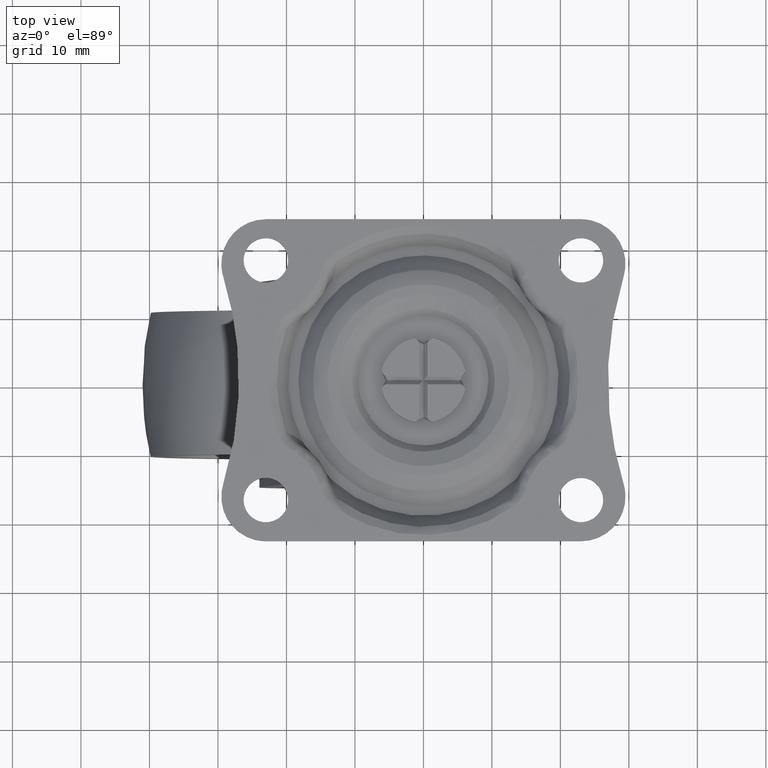
[diagram: clean part render]
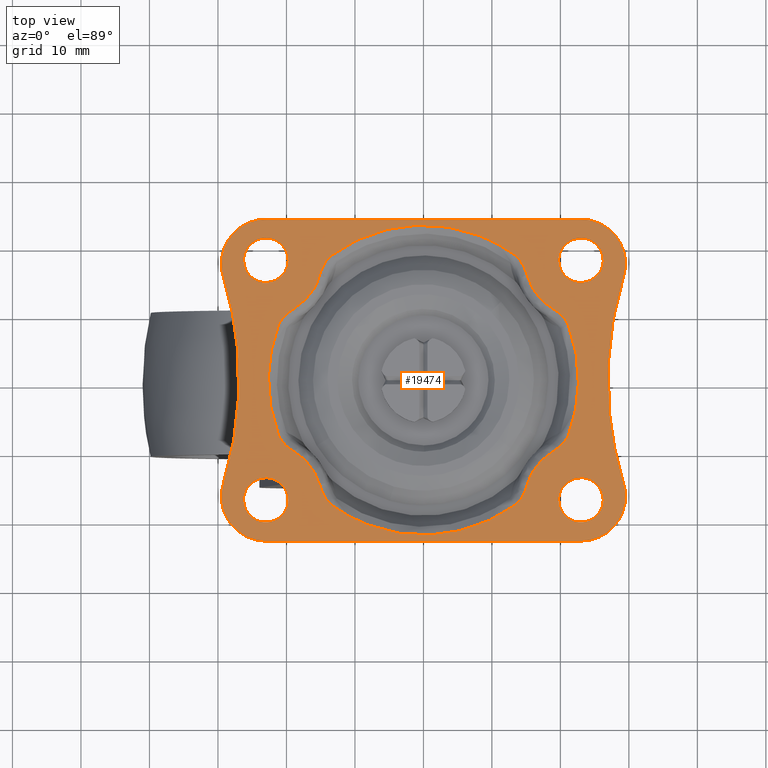
[diagram: same view with one face highlighted and labeled with its STEP entity id]
A machine part, top view. The second image highlights one B-rep face of the part: STEP entity #19474.
In plain terms, the highlighted face is a freeform B-spline surface patch.
Its self-contained STEP definition (entity closure, byte-faithful):
#9133=CARTESIAN_POINT('',(-23.383613262753968,14.272719039332291,-2.484500E-017));
#9134=VERTEX_POINT('',#9133);
#9140=CARTESIAN_POINT('',(-19.750001999999999,17.500000000000000,0.0));
#9141=VERTEX_POINT('',#9140);
#9142=CARTESIAN_POINT('',(-23.383613262753968,14.272719039332289,-2.484500E-017));
#9143=CARTESIAN_POINT('',(-23.192480388989473,14.249999999999996,0.0));
#9144=CARTESIAN_POINT('',(-23.000001999999999,14.250000000000000,0.0));
#9145=CARTESIAN_POINT('',(-19.750001999999991,14.249999999999998,0.0));
#9146=CARTESIAN_POINT('',(-19.750001999999999,17.500000000000000,0.0));
#9154=(BOUNDED_CURVE()B_SPLINE_CURVE(2,(#9142,#9143,#9144,#9145,#9146),.UNSPECIFIED.,.F.,.U.)B_SPLINE_CURVE_WITH_KNOTS((3,2,3),(0.229562473503128,0.250000000000000,0.500000000000000),.UNSPECIFIED.)CURVE()GEOMETRIC_REPRESENTATION_ITEM()RATIONAL_B_SPLINE_CURVE((0.956026754163354,0.976055948318984,1.0,0.707106781186547,1.0))REPRESENTATION_ITEM(''));
#9155=EDGE_CURVE('',#9134,#9141,#9154,.T.);
#9157=CARTESIAN_POINT('',(-22.801594246309421,20.743938094858692,-2.081668E-017));
#9158=VERTEX_POINT('',#9157);
#9159=CARTESIAN_POINT('',(-19.750001999999999,17.500000000000000,0.0));
#9160=CARTESIAN_POINT('',(-19.750002000000002,20.557294717061495,0.0));
#9161=CARTESIAN_POINT('',(-22.801594246309413,20.743938094858692,-2.081668E-017));
#9169=(BOUNDED_CURVE()B_SPLINE_CURVE(2,(#9159,#9160,#9161),.UNSPECIFIED.,.F.,.U.)B_SPLINE_CURVE_WITH_KNOTS((3,3),(0.500000000000000,0.739332962220449),.UNSPECIFIED.)CURVE()GEOMETRIC_REPRESENTATION_ITEM()RATIONAL_B_SPLINE_CURVE((1.0,0.719603993308377,0.976072041627081))REPRESENTATION_ITEM(''));
#9170=EDGE_CURVE('',#9141,#9158,#9169,.T.);
#9244=CARTESIAN_POINT('',(-26.250001999999999,17.500000000000000,0.0));
#9245=VERTEX_POINT('',#9244);
#9246=CARTESIAN_POINT('',(-22.801594246309413,20.743938094858695,-2.081668E-017));
#9247=CARTESIAN_POINT('',(-22.900705519076723,20.749999999999996,0.0));
#9248=CARTESIAN_POINT('',(-23.000001999999999,20.750000000000000,0.0));
#9249=CARTESIAN_POINT('',(-26.250001999999995,20.750000000000000,0.0));
#9250=CARTESIAN_POINT('',(-26.250001999999999,17.500000000000000,0.0));
#9258=(BOUNDED_CURVE()B_SPLINE_CURVE(2,(#9246,#9247,#9248,#9249,#9250),.UNSPECIFIED.,.F.,.U.)B_SPLINE_CURVE_WITH_KNOTS((3,2,3),(0.739332962220448,0.750000000000000,1.0),.UNSPECIFIED.)CURVE()GEOMETRIC_REPRESENTATION_ITEM()RATIONAL_B_SPLINE_CURVE((0.976072041627080,0.987502787878169,1.0,0.707106781186547,1.0))REPRESENTATION_ITEM(''));
#9259=EDGE_CURVE('',#9158,#9245,#9258,.T.);
#9261=CARTESIAN_POINT('',(-26.250001999999999,17.500000000000000,0.0));
#9262=CARTESIAN_POINT('',(-26.250002000000006,14.613432790873329,0.0));
#9263=CARTESIAN_POINT('',(-23.383613262753968,14.272719039332289,-2.484500E-017));
#9271=(BOUNDED_CURVE()B_SPLINE_CURVE(2,(#9261,#9262,#9263),.UNSPECIFIED.,.F.,.U.)B_SPLINE_CURVE_WITH_KNOTS((3,3),(0.0,0.229562473503128),.UNSPECIFIED.)CURVE()GEOMETRIC_REPRESENTATION_ITEM()RATIONAL_B_SPLINE_CURVE((1.0,0.731050832867563,0.956026754163354))REPRESENTATION_ITEM(''));
#9272=EDGE_CURVE('',#9245,#9134,#9271,.T.);
#9300=CARTESIAN_POINT('',(22.616388737246030,14.272719039332291,8.163356E-017));
#9301=VERTEX_POINT('',#9300);
#9302=CARTESIAN_POINT('',(26.250000000000000,17.500000000000000,0.0));
#9303=VERTEX_POINT('',#9302);
#9304=CARTESIAN_POINT('',(22.616388737246030,14.272719039332285,8.163356E-017));
#9305=CARTESIAN_POINT('',(22.807521611010532,14.250000000000007,0.0));
#9306=CARTESIAN_POINT('',(23.0,14.250000000000000,0.0));
#9307=CARTESIAN_POINT('',(26.250000000000000,14.249999999999998,0.0));
#9308=CARTESIAN_POINT('',(26.250000000000000,17.500000000000000,0.0));
#9316=(BOUNDED_CURVE()B_SPLINE_CURVE(2,(#9304,#9305,#9306,#9307,#9308),.UNSPECIFIED.,.F.,.U.)B_SPLINE_CURVE_WITH_KNOTS((3,2,3),(0.229562473503128,0.250000000000000,0.500000000000000),.UNSPECIFIED.)CURVE()GEOMETRIC_REPRESENTATION_ITEM()RATIONAL_B_SPLINE_CURVE((0.956026754163354,0.976055948318984,1.0,0.707106781186547,1.0))REPRESENTATION_ITEM(''));
#9317=EDGE_CURVE('',#9301,#9303,#9316,.T.);
#9319=CARTESIAN_POINT('',(23.198407753690582,20.743938094858699,7.979728E-017));
#9320=VERTEX_POINT('',#9319);
#9321=CARTESIAN_POINT('',(26.250000000000000,17.500000000000000,0.0));
#9322=CARTESIAN_POINT('',(26.249999999999993,20.557294717061495,0.0));
#9323=CARTESIAN_POINT('',(23.198407753690585,20.743938094858692,7.979728E-017));
#9331=(BOUNDED_CURVE()B_SPLINE_CURVE(2,(#9321,#9322,#9323),.UNSPECIFIED.,.F.,.U.)B_SPLINE_CURVE_WITH_KNOTS((3,3),(0.500000000000000,0.739332962220449),.UNSPECIFIED.)CURVE()GEOMETRIC_REPRESENTATION_ITEM()RATIONAL_B_SPLINE_CURVE((1.0,0.719603993308377,0.976072041627081))REPRESENTATION_ITEM(''));
#9332=EDGE_CURVE('',#9303,#9320,#9331,.T.);
#9399=CARTESIAN_POINT('',(19.750000000000000,17.500000000000000,0.0));
#9400=VERTEX_POINT('',#9399);
#9401=CARTESIAN_POINT('',(19.750000000000000,17.500000000000000,0.0));
#9402=CARTESIAN_POINT('',(19.750000000000004,14.613432790873331,0.0));
#9403=CARTESIAN_POINT('',(22.616388737246030,14.272719039332285,8.163356E-017));
#9411=(BOUNDED_CURVE()B_SPLINE_CURVE(2,(#9401,#9402,#9403),.UNSPECIFIED.,.F.,.U.)B_SPLINE_CURVE_WITH_KNOTS((3,3),(0.0,0.229562473503128),.UNSPECIFIED.)CURVE()GEOMETRIC_REPRESENTATION_ITEM()RATIONAL_B_SPLINE_CURVE((1.0,0.731050832867563,0.956026754163354))REPRESENTATION_ITEM(''));
#9412=EDGE_CURVE('',#9400,#9301,#9411,.T.);
#9446=CARTESIAN_POINT('',(23.198407753690585,20.743938094858692,7.979728E-017));
#9447=CARTESIAN_POINT('',(23.099296480923275,20.750000000000004,0.0));
#9448=CARTESIAN_POINT('',(23.0,20.750000000000000,0.0));
#9449=CARTESIAN_POINT('',(19.749999999999996,20.750000000000000,0.0));
#9450=CARTESIAN_POINT('',(19.750000000000000,17.500000000000000,0.0));
#9458=(BOUNDED_CURVE()B_SPLINE_CURVE(2,(#9446,#9447,#9448,#9449,#9450),.UNSPECIFIED.,.F.,.U.)B_SPLINE_CURVE_WITH_KNOTS((3,2,3),(0.739332962220448,0.750000000000000,1.0),.UNSPECIFIED.)CURVE()GEOMETRIC_REPRESENTATION_ITEM()RATIONAL_B_SPLINE_CURVE((0.976072041627080,0.987502787878169,1.0,0.707106781186547,1.0))REPRESENTATION_ITEM(''));
#9459=EDGE_CURVE('',#9320,#9400,#9458,.T.);
#9672=CARTESIAN_POINT('',(22.616388737246030,-20.727280960667709,8.163356E-017));
#9673=VERTEX_POINT('',#9672);
#9674=CARTESIAN_POINT('',(26.250000000000000,-17.500000000000000,0.0));
#9675=VERTEX_POINT('',#9674);
#9676=CARTESIAN_POINT('',(22.616388737246030,-20.727280960667713,8.163356E-017));
#9677=CARTESIAN_POINT('',(22.807521611010532,-20.750000000000000,0.0));
#9678=CARTESIAN_POINT('',(23.0,-20.750000000000000,0.0));
#9679=CARTESIAN_POINT('',(26.250000000000000,-20.750000000000000,0.0));
#9680=CARTESIAN_POINT('',(26.250000000000000,-17.500000000000000,0.0));
#9688=(BOUNDED_CURVE()B_SPLINE_CURVE(2,(#9676,#9677,#9678,#9679,#9680),.UNSPECIFIED.,.F.,.U.)B_SPLINE_CURVE_WITH_KNOTS((3,2,3),(0.229562473503128,0.250000000000000,0.500000000000000),.UNSPECIFIED.)CURVE()GEOMETRIC_REPRESENTATION_ITEM()RATIONAL_B_SPLINE_CURVE((0.956026754163354,0.976055948318984,1.0,0.707106781186547,1.0))REPRESENTATION_ITEM(''));
#9689=EDGE_CURVE('',#9673,#9675,#9688,.T.);
#9691=CARTESIAN_POINT('',(23.198407753690582,-14.256061905141310,7.979728E-017));
#9692=VERTEX_POINT('',#9691);
#9693=CARTESIAN_POINT('',(26.250000000000000,-17.500000000000000,0.0));
#9694=CARTESIAN_POINT('',(26.249999999999993,-14.442705282938498,0.0));
#9695=CARTESIAN_POINT('',(23.198407753690574,-14.256061905141305,7.979728E-017));
#9703=(BOUNDED_CURVE()B_SPLINE_CURVE(2,(#9693,#9694,#9695),.UNSPECIFIED.,.F.,.U.)B_SPLINE_CURVE_WITH_KNOTS((3,3),(0.500000000000000,0.739332962220449),.UNSPECIFIED.)CURVE()GEOMETRIC_REPRESENTATION_ITEM()RATIONAL_B_SPLINE_CURVE((1.0,0.719603993308377,0.976072041627081))REPRESENTATION_ITEM(''));
#9704=EDGE_CURVE('',#9675,#9692,#9703,.T.);
#9771=CARTESIAN_POINT('',(19.750000000000000,-17.500000000000000,0.0));
#9772=VERTEX_POINT('',#9771);
#9773=CARTESIAN_POINT('',(19.750000000000000,-17.500000000000000,0.0));
#9774=CARTESIAN_POINT('',(19.750000000000004,-20.386567209126671,0.0));
#9775=CARTESIAN_POINT('',(22.616388737246030,-20.727280960667713,8.163356E-017));
#9783=(BOUNDED_CURVE()B_SPLINE_CURVE(2,(#9773,#9774,#9775),.UNSPECIFIED.,.F.,.U.)B_SPLINE_CURVE_WITH_KNOTS((3,3),(0.0,0.229562473503128),.UNSPECIFIED.)CURVE()GEOMETRIC_REPRESENTATION_ITEM()RATIONAL_B_SPLINE_CURVE((1.0,0.731050832867563,0.956026754163354))REPRESENTATION_ITEM(''));
#9784=EDGE_CURVE('',#9772,#9673,#9783,.T.);
#9818=CARTESIAN_POINT('',(23.198407753690582,-14.256061905141310,7.979728E-017));
#9819=CARTESIAN_POINT('',(23.099296480923272,-14.250000000000005,0.0));
#9820=CARTESIAN_POINT('',(23.0,-14.250000000000000,0.0));
#9821=CARTESIAN_POINT('',(19.749999999999996,-14.249999999999998,0.0));
#9822=CARTESIAN_POINT('',(19.750000000000000,-17.500000000000000,0.0));
#9830=(BOUNDED_CURVE()B_SPLINE_CURVE(2,(#9818,#9819,#9820,#9821,#9822),.UNSPECIFIED.,.F.,.U.)B_SPLINE_CURVE_WITH_KNOTS((3,2,3),(0.739332962220448,0.750000000000000,1.0),.UNSPECIFIED.)CURVE()GEOMETRIC_REPRESENTATION_ITEM()RATIONAL_B_SPLINE_CURVE((0.976072041627080,0.987502787878169,1.0,0.707106781186547,1.0))REPRESENTATION_ITEM(''));
#9831=EDGE_CURVE('',#9692,#9772,#9830,.T.);
#9877=CARTESIAN_POINT('',(-23.383609262753971,-20.727280960667709,-2.484500E-017));
#9878=VERTEX_POINT('',#9877);
#9884=CARTESIAN_POINT('',(-19.749998000000001,-17.500000000000000,0.0));
#9885=VERTEX_POINT('',#9884);
#9886=CARTESIAN_POINT('',(-23.383609262753968,-20.727280960667716,-2.484500E-017));
#9887=CARTESIAN_POINT('',(-23.192476388989476,-20.750000000000000,0.0));
#9888=CARTESIAN_POINT('',(-22.999998000000001,-20.750000000000000,0.0));
#9889=CARTESIAN_POINT('',(-19.749998000000001,-20.750000000000000,0.0));
#9890=CARTESIAN_POINT('',(-19.749998000000001,-17.500000000000000,0.0));
#9898=(BOUNDED_CURVE()B_SPLINE_CURVE(2,(#9886,#9887,#9888,#9889,#9890),.UNSPECIFIED.,.F.,.U.)B_SPLINE_CURVE_WITH_KNOTS((3,2,3),(0.229562473503128,0.250000000000000,0.500000000000000),.UNSPECIFIED.)CURVE()GEOMETRIC_REPRESENTATION_ITEM()RATIONAL_B_SPLINE_CURVE((0.956026754163353,0.976055948318984,1.0,0.707106781186547,1.0))REPRESENTATION_ITEM(''));
#9899=EDGE_CURVE('',#9878,#9885,#9898,.T.);
#9901=CARTESIAN_POINT('',(-22.801590246309420,-14.256061905141310,-2.081668E-017));
#9902=VERTEX_POINT('',#9901);
#9903=CARTESIAN_POINT('',(-19.749998000000001,-17.500000000000000,0.0));
#9904=CARTESIAN_POINT('',(-19.749998000000009,-14.442705282938498,0.0));
#9905=CARTESIAN_POINT('',(-22.801590246309420,-14.256061905141305,-2.081668E-017));
#9913=(BOUNDED_CURVE()B_SPLINE_CURVE(2,(#9903,#9904,#9905),.UNSPECIFIED.,.F.,.U.)B_SPLINE_CURVE_WITH_KNOTS((3,3),(0.500000000000000,0.739332962220449),.UNSPECIFIED.)CURVE()GEOMETRIC_REPRESENTATION_ITEM()RATIONAL_B_SPLINE_CURVE((1.0,0.719603993308377,0.976072041627081))REPRESENTATION_ITEM(''));
#9914=EDGE_CURVE('',#9885,#9902,#9913,.T.);
#9988=CARTESIAN_POINT('',(-26.249998000000001,-17.500000000000000,0.0));
#9989=VERTEX_POINT('',#9988);
#9990=CARTESIAN_POINT('',(-22.801590246309427,-14.256061905141308,-2.081668E-017));
#9991=CARTESIAN_POINT('',(-22.900701519076737,-14.250000000000004,0.0));
#9992=CARTESIAN_POINT('',(-22.999998000000001,-14.250000000000000,0.0));
#9993=CARTESIAN_POINT('',(-26.249998000000001,-14.249999999999998,0.0));
#9994=CARTESIAN_POINT('',(-26.249998000000001,-17.500000000000000,0.0));
#10002=(BOUNDED_CURVE()B_SPLINE_CURVE(2,(#9990,#9991,#9992,#9993,#9994),.UNSPECIFIED.,.F.,.U.)B_SPLINE_CURVE_WITH_KNOTS((3,2,3),(0.739332962220448,0.750000000000000,1.0),.UNSPECIFIED.)CURVE()GEOMETRIC_REPRESENTATION_ITEM()RATIONAL_B_SPLINE_CURVE((0.976072041627080,0.987502787878170,1.0,0.707106781186547,1.0))REPRESENTATION_ITEM(''));
#10003=EDGE_CURVE('',#9902,#9989,#10002,.T.);
#10005=CARTESIAN_POINT('',(-26.249998000000001,-17.500000000000000,0.0));
#10006=CARTESIAN_POINT('',(-26.249997999999998,-20.386567209126664,0.0));
#10007=CARTESIAN_POINT('',(-23.383609262753971,-20.727280960667709,-2.484500E-017));
#10015=(BOUNDED_CURVE()B_SPLINE_CURVE(2,(#10005,#10006,#10007),.UNSPECIFIED.,.F.,.U.)B_SPLINE_CURVE_WITH_KNOTS((3,3),(0.0,0.229562473503128),.UNSPECIFIED.)CURVE()GEOMETRIC_REPRESENTATION_ITEM()RATIONAL_B_SPLINE_CURVE((1.0,0.731050832867564,0.956026754163354))REPRESENTATION_ITEM(''));
#10016=EDGE_CURVE('',#9989,#9878,#10015,.T.);
#16244=CARTESIAN_POINT('',(13.369151126432101,-18.259989189503852,0.0));
#16245=VERTEX_POINT('',#16244);
#16246=CARTESIAN_POINT('',(15.157640557445900,-15.281915607155099,0.0));
#16247=VERTEX_POINT('',#16246);
#16248=CARTESIAN_POINT('',(13.369151126432101,-18.259989189503852,0.0));
#16249=CARTESIAN_POINT('',(13.429468349377251,-18.215827604263499,0.0));
#16250=CARTESIAN_POINT('',(13.488220258746050,-18.169464099778232,0.0));
#16251=CARTESIAN_POINT('',(13.601918321335960,-18.073434041684230,0.0));
#16252=CARTESIAN_POINT('',(13.656966980112950,-18.023699014845501,0.0));
#16253=CARTESIAN_POINT('',(13.817168611596740,-17.869770321780319,0.0));
#16254=CARTESIAN_POINT('',(13.917397416659700,-17.760872319429541,0.0));
#16255=CARTESIAN_POINT('',(14.106479334702779,-17.532208472063921,0.0));
#16256=CARTESIAN_POINT('',(14.195663348666290,-17.411844299073909,0.0));
#16257=CARTESIAN_POINT('',(14.360853140805981,-17.166197641332982,0.0));
#16258=CARTESIAN_POINT('',(14.437253089937849,-17.040535551981179,0.0));
#16259=CARTESIAN_POINT('',(14.650899867168150,-16.656422275189339,0.0));
#16260=CARTESIAN_POINT('',(14.772695224429951,-16.390890635692379,0.0));
#16261=CARTESIAN_POINT('',(14.985915975125300,-15.845910683319630,0.0));
#16262=CARTESIAN_POINT('',(15.077181794208730,-15.566389247402800,0.0));
#16263=CARTESIAN_POINT('',(15.157640557445900,-15.281915607155099,0.0));
#16264=B_SPLINE_CURVE_WITH_KNOTS('',3,(#16248,#16249,#16250,#16251,#16252,#16253,#16254,#16255,#16256,#16257,#16258,#16259,#16260,#16261,#16262,#16263),.UNSPECIFIED.,.F.,.U.,(4,2,2,2,2,2,2,4),(0.0,0.062500000000001,0.125000000000002,0.250000000000001,0.375000000000000,0.499999999999999,0.749999999999999,1.0),.UNSPECIFIED.);
#16265=EDGE_CURVE('',#16245,#16247,#16264,.T.);
#16316=CARTESIAN_POINT('',(-13.369151126431801,-18.259989189504100,0.0));
#16317=VERTEX_POINT('',#16316);
#16331=CARTESIAN_POINT('',(13.369151126432101,-18.259989189503852,0.0));
#16332=CARTESIAN_POINT('',(2.393918E-013,-28.048286432533811,0.0));
#16333=CARTESIAN_POINT('',(-13.369151126431790,-18.259989189504079,0.0));
#16341=(BOUNDED_CURVE()B_SPLINE_CURVE(2,(#16331,#16332,#16333),.UNSPECIFIED.,.F.,.U.)CURVE()GEOMETRIC_REPRESENTATION_ITEM()QUASI_UNIFORM_CURVE()RATIONAL_B_SPLINE_CURVE((1.0,0.806857966057773,1.0))REPRESENTATION_ITEM(''));
#16342=EDGE_CURVE('',#16245,#16317,#16341,.T.);
#16378=CARTESIAN_POINT('',(18.770794969088200,-10.533198380425199,0.0));
#16379=VERTEX_POINT('',#16378);
#16409=CARTESIAN_POINT('',(18.770794969088200,-10.533198380425191,0.0));
#16410=CARTESIAN_POINT('',(16.030191550301502,-12.196884875229401,0.0));
#16411=CARTESIAN_POINT('',(15.157640557445880,-15.281915607155090,0.0));
#16419=(BOUNDED_CURVE()B_SPLINE_CURVE(2,(#16409,#16410,#16411),.UNSPECIFIED.,.F.,.U.)CURVE()GEOMETRIC_REPRESENTATION_ITEM()QUASI_UNIFORM_CURVE()RATIONAL_B_SPLINE_CURVE((1.0,0.930585668730333,1.0))REPRESENTATION_ITEM(''));
#16420=EDGE_CURVE('',#16379,#16247,#16419,.T.);
#16505=CARTESIAN_POINT('',(-15.157640557445900,-15.281915607155099,0.0));
#16506=VERTEX_POINT('',#16505);
#16520=CARTESIAN_POINT('',(-15.157640557445900,-15.281915607155099,0.0));
#16521=CARTESIAN_POINT('',(-15.077244535251060,-15.566167417337500,0.0));
#16522=CARTESIAN_POINT('',(-14.985883128872160,-15.846184168719841,0.0));
#16523=CARTESIAN_POINT('',(-14.825035894595681,-16.257015262899529,0.0));
#16524=CARTESIAN_POINT('',(-14.767456298597381,-16.392428039398251,0.0));
#16525=CARTESIAN_POINT('',(-14.674093512789320,-16.592846211182248,0.0));
#16526=CARTESIAN_POINT('',(-14.641805283628990,-16.659201432757751,0.0));
#16527=CARTESIAN_POINT('',(-14.574689700724189,-16.790931213331518,0.0));
#16528=CARTESIAN_POINT('',(-14.539863017797749,-16.856291200347329,0.0));
#16529=CARTESIAN_POINT('',(-14.360059735150219,-17.178292461641650,0.0));
#16530=CARTESIAN_POINT('',(-14.197517498946500,-17.422414950244061,0.0));
#16531=CARTESIAN_POINT('',(-13.963345765039280,-17.705227892752109,0.0));
#16532=CARTESIAN_POINT('',(-13.914941691490910,-17.760659035506698,0.0));
#16533=CARTESIAN_POINT('',(-13.814698512168450,-17.869045378906382,0.0));
#16534=CARTESIAN_POINT('',(-13.762735977594181,-17.922117582648578,0.0));
#16535=CARTESIAN_POINT('',(-13.602104347603740,-18.076319846402740,0.0));
#16536=CARTESIAN_POINT('',(-13.489077688002100,-18.172184300406599,0.0));
#16537=CARTESIAN_POINT('',(-13.369151126431801,-18.259989189504100,0.0));
#16538=B_SPLINE_CURVE_WITH_KNOTS('',3,(#16520,#16521,#16522,#16523,#16524,#16525,#16526,#16527,#16528,#16529,#16530,#16531,#16532,#16533,#16534,#16535,#16536,#16537),.UNSPECIFIED.,.F.,.U.,(4,2,2,2,2,2,2,2,4),(0.0,0.249999999999999,0.374999999999999,0.437499999999998,0.499999999999997,0.750000000000000,0.812500000000000,0.875000000000000,1.0),.UNSPECIFIED.);
#16539=EDGE_CURVE('',#16506,#16317,#16538,.T.);
#16638=CARTESIAN_POINT('',(21.164046346558951,-8.015269757337149,0.0));
#16639=VERTEX_POINT('',#16638);
#16671=CARTESIAN_POINT('',(18.770794969088200,-10.533198380425199,0.0));
#16672=CARTESIAN_POINT('',(19.023311572803141,-10.379907882269000,0.0));
#16673=CARTESIAN_POINT('',(19.268822176325290,-10.217178563495700,0.0));
#16674=CARTESIAN_POINT('',(19.621878517994890,-9.952593529289096,0.0));
#16675=CARTESIAN_POINT('',(19.737031382493949,-9.860986500562701,0.0));
#16676=CARTESIAN_POINT('',(19.905292463304932,-9.717556161933127,0.0));
#16677=CARTESIAN_POINT('',(19.960633678896450,-9.668741256120484,0.0));
#16678=CARTESIAN_POINT('',(20.069693813311090,-9.568925808217266,0.0));
#16679=CARTESIAN_POINT('',(20.123398866799079,-9.517929798802671,0.0));
#16680=CARTESIAN_POINT('',(20.385787174649650,-9.258764969728086,0.0));
#16681=CARTESIAN_POINT('',(20.577720512225881,-9.037005275648287,0.0));
#16682=CARTESIAN_POINT('',(20.787840434394269,-8.735892041599859,0.0));
#16683=CARTESIAN_POINT('',(20.828355325186902,-8.674458259791999,0.0));
#16684=CARTESIAN_POINT('',(20.906082757982670,-8.548940370122038,0.0));
#16685=CARTESIAN_POINT('',(20.943375148807039,-8.484706100483189,0.0));
#16686=CARTESIAN_POINT('',(21.049154408599581,-8.288768337665440,0.0));
#16687=CARTESIAN_POINT('',(21.111404270373729,-8.154269363575443,0.0));
#16688=CARTESIAN_POINT('',(21.164046346558951,-8.015269757337149,0.0));
#16689=B_SPLINE_CURVE_WITH_KNOTS('',3,(#16671,#16672,#16673,#16674,#16675,#16676,#16677,#16678,#16679,#16680,#16681,#16682,#16683,#16684,#16685,#16686,#16687,#16688),.UNSPECIFIED.,.F.,.U.,(4,2,2,2,2,2,2,2,4),(0.0,0.250000000000000,0.375000000000000,0.437500000000000,0.500000000000000,0.749999999999996,0.812499999999997,0.874999999999998,1.0),.UNSPECIFIED.);
#16690=EDGE_CURVE('',#16379,#16639,#16689,.T.);
#16833=CARTESIAN_POINT('',(-18.770794969088200,-10.533198380425199,0.0));
#16834=VERTEX_POINT('',#16833);
#16848=CARTESIAN_POINT('',(-15.157640557445880,-15.281915607155099,0.0));
#16849=CARTESIAN_POINT('',(-16.030191550301495,-12.196884875229417,0.0));
#16850=CARTESIAN_POINT('',(-18.770794969088190,-10.533198380425191,0.0));
#16858=(BOUNDED_CURVE()B_SPLINE_CURVE(2,(#16848,#16849,#16850),.UNSPECIFIED.,.F.,.U.)CURVE()GEOMETRIC_REPRESENTATION_ITEM()QUASI_UNIFORM_CURVE()RATIONAL_B_SPLINE_CURVE((1.0,0.930585668730333,1.0))REPRESENTATION_ITEM(''));
#16859=EDGE_CURVE('',#16506,#16834,#16858,.T.);
#16895=CARTESIAN_POINT('',(21.164046346559100,8.015269757336789,0.0));
#16896=VERTEX_POINT('',#16895);
#16926=CARTESIAN_POINT('',(21.164046346559068,8.015269757336782,0.0));
#16927=CARTESIAN_POINT('',(24.199597688248730,-2.081668E-013,0.0));
#16928=CARTESIAN_POINT('',(21.164046346558941,-8.015269757337142,0.0));
#16936=(BOUNDED_CURVE()B_SPLINE_CURVE(2,(#16926,#16927,#16928),.UNSPECIFIED.,.F.,.U.)CURVE()GEOMETRIC_REPRESENTATION_ITEM()QUASI_UNIFORM_CURVE()RATIONAL_B_SPLINE_CURVE((1.0,0.935180147781945,1.0))REPRESENTATION_ITEM(''));
#16937=EDGE_CURVE('',#16896,#16639,#16936,.T.);
#17121=CARTESIAN_POINT('',(-21.164046346558951,-8.015269757337149,0.0));
#17122=VERTEX_POINT('',#17121);
#17136=CARTESIAN_POINT('',(-21.164046346558951,-8.015269757337149,0.0));
#17137=CARTESIAN_POINT('',(-21.111288454567809,-8.154575171259776,0.0));
#17138=CARTESIAN_POINT('',(-21.048444335957520,-8.290181216899185,0.0));
#17139=CARTESIAN_POINT('',(-20.907748098612689,-8.550600698992437,0.0));
#17140=CARTESIAN_POINT('',(-20.829847677620460,-8.675724165400521,0.0));
#17141=CARTESIAN_POINT('',(-20.661211709095561,-8.917326982046467,0.0));
#17142=CARTESIAN_POINT('',(-20.570462333646930,-9.033797019550901,0.0));
#17143=CARTESIAN_POINT('',(-20.425860597536641,-9.202792588683087,0.0));
#17144=CARTESIAN_POINT('',(-20.376223427480060,-9.258178027424650,0.0));
#17145=CARTESIAN_POINT('',(-20.275183243997120,-9.366217892966443,0.0));
#17146=CARTESIAN_POINT('',(-20.223671313543921,-9.419003455620862,0.0));
#17147=CARTESIAN_POINT('',(-19.961573660930181,-9.677283604659381,0.0));
#17148=CARTESIAN_POINT('',(-19.737513006188632,-9.866008272807095,0.0));
#17149=CARTESIAN_POINT('',(-19.268444613366270,-10.217388397046889,0.0));
#17150=CARTESIAN_POINT('',(-19.023322358985322,-10.379901334504559,0.0));
#17151=CARTESIAN_POINT('',(-18.770794969088200,-10.533198380425199,0.0));
#17152=B_SPLINE_CURVE_WITH_KNOTS('',3,(#17136,#17137,#17138,#17139,#17140,#17141,#17142,#17143,#17144,#17145,#17146,#17147,#17148,#17149,#17150,#17151),.UNSPECIFIED.,.F.,.U.,(4,2,2,2,2,2,2,4),(0.0,0.124999999999997,0.249999999999995,0.374999999999992,0.437499999999991,0.499999999999991,0.749999999999995,1.0),.UNSPECIFIED.);
#17153=EDGE_CURVE('',#17122,#16834,#17152,.T.);
#17234=CARTESIAN_POINT('',(18.770794969088200,10.533198380425199,0.0));
#17235=VERTEX_POINT('',#17234);
#17269=CARTESIAN_POINT('',(21.164046346559100,8.015269757336789,0.0));
#17270=CARTESIAN_POINT('',(21.111289771151100,8.154571694866611,0.0));
#17271=CARTESIAN_POINT('',(21.048447079885879,8.290175662363060,0.0));
#17272=CARTESIAN_POINT('',(20.907750591527410,8.550596560458738,0.0));
#17273=CARTESIAN_POINT('',(20.829852234689952,8.675716605602860,0.0));
#17274=CARTESIAN_POINT('',(20.661226335114311,8.917307058336444,0.0));
#17275=CARTESIAN_POINT('',(20.570484948239820,9.033768131992922,0.0));
#17276=CARTESIAN_POINT('',(20.425900306541049,9.202747409230252,0.0));
#17277=CARTESIAN_POINT('',(20.376261445516992,9.258136304652727,0.0));
#17278=CARTESIAN_POINT('',(20.275215841983250,9.366184106955902,0.0));
#17279=CARTESIAN_POINT('',(20.223701318208789,9.418973177721226,0.0));
#17280=CARTESIAN_POINT('',(19.961591397597381,9.677268966431697,0.0));
#17281=CARTESIAN_POINT('',(19.737523253019710,9.866000259238344,0.0));
#17282=CARTESIAN_POINT('',(19.268445615460742,10.217387984013660,0.0));
#17283=CARTESIAN_POINT('',(19.023321586779598,10.379901803272929,0.0));
#17284=CARTESIAN_POINT('',(18.770794969088200,10.533198380425199,0.0));
#17285=B_SPLINE_CURVE_WITH_KNOTS('',3,(#17269,#17270,#17271,#17272,#17273,#17274,#17275,#17276,#17277,#17278,#17279,#17280,#17281,#17282,#17283,#17284),.UNSPECIFIED.,.F.,.U.,(4,2,2,2,2,2,2,4),(0.0,0.125000000000000,0.250000000000001,0.375000000000001,0.437500000000002,0.500000000000003,0.750000000000002,1.0),.UNSPECIFIED.);
#17286=EDGE_CURVE('',#16896,#17235,#17285,.T.);
#17427=CARTESIAN_POINT('',(-21.164046346558951,8.015269757337149,0.0));
#17428=VERTEX_POINT('',#17427);
#17442=CARTESIAN_POINT('',(-21.164046346558941,-8.015269757337141,0.0));
#17443=CARTESIAN_POINT('',(-24.199597688248794,-5.204170E-015,0.0));
#17444=CARTESIAN_POINT('',(-21.164046346558941,8.015269757337130,0.0));
#17452=(BOUNDED_CURVE()B_SPLINE_CURVE(2,(#17442,#17443,#17444),.UNSPECIFIED.,.F.,.U.)CURVE()GEOMETRIC_REPRESENTATION_ITEM()QUASI_UNIFORM_CURVE()RATIONAL_B_SPLINE_CURVE((1.0,0.935180147781942,1.0))REPRESENTATION_ITEM(''));
#17453=EDGE_CURVE('',#17122,#17428,#17452,.T.);
#17489=CARTESIAN_POINT('',(15.157640557445900,15.281915607155099,0.0));
#17490=VERTEX_POINT('',#17489);
#17520=CARTESIAN_POINT('',(15.157640557445880,15.281915607155099,0.0));
#17521=CARTESIAN_POINT('',(16.030191550301499,12.196884875229408,0.0));
#17522=CARTESIAN_POINT('',(18.770794969088190,10.533198380425191,0.0));
#17530=(BOUNDED_CURVE()B_SPLINE_CURVE(2,(#17520,#17521,#17522),.UNSPECIFIED.,.F.,.U.)CURVE()GEOMETRIC_REPRESENTATION_ITEM()QUASI_UNIFORM_CURVE()RATIONAL_B_SPLINE_CURVE((1.0,0.930585668730333,1.0))REPRESENTATION_ITEM(''));
#17531=EDGE_CURVE('',#17490,#17235,#17530,.T.);
#17733=CARTESIAN_POINT('',(-18.770794969088200,10.533198380425199,0.0));
#17734=VERTEX_POINT('',#17733);
#17748=CARTESIAN_POINT('',(-18.770794969088200,10.533198380425199,0.0));
#17749=CARTESIAN_POINT('',(-19.023311572803141,10.379907882269009,0.0));
#17750=CARTESIAN_POINT('',(-19.268822176325280,10.217178563495690,0.0));
#17751=CARTESIAN_POINT('',(-19.621878517994890,9.952593529289096,0.0));
#17752=CARTESIAN_POINT('',(-19.737031382493960,9.860986500562706,0.0));
#17753=CARTESIAN_POINT('',(-19.905292463304921,9.717556161933123,0.0));
#17754=CARTESIAN_POINT('',(-19.960633678896439,9.668741256120486,0.0));
#17755=CARTESIAN_POINT('',(-20.069693813311069,9.568925808217271,0.0));
#17756=CARTESIAN_POINT('',(-20.123398866799079,9.517929798802671,0.0));
#17757=CARTESIAN_POINT('',(-20.385787174649639,9.258764969728091,0.0));
#17758=CARTESIAN_POINT('',(-20.577720512225881,9.037005275648289,0.0));
#17759=CARTESIAN_POINT('',(-20.787840434394269,8.735892041599865,0.0));
#17760=CARTESIAN_POINT('',(-20.828355325186909,8.674458259792004,0.0));
#17761=CARTESIAN_POINT('',(-20.906082757982681,8.548940370122041,0.0));
#17762=CARTESIAN_POINT('',(-20.943375148807039,8.484706100483189,0.0));
#17763=CARTESIAN_POINT('',(-21.049154408599581,8.288768337665438,0.0));
#17764=CARTESIAN_POINT('',(-21.111404270373729,8.154269363575441,0.0));
#17765=CARTESIAN_POINT('',(-21.164046346558951,8.015269757337149,0.0));
#17766=B_SPLINE_CURVE_WITH_KNOTS('',3,(#17748,#17749,#17750,#17751,#17752,#17753,#17754,#17755,#17756,#17757,#17758,#17759,#17760,#17761,#17762,#17763,#17764,#17765),.UNSPECIFIED.,.F.,.U.,(4,2,2,2,2,2,2,2,4),(0.0,0.249999999999999,0.374999999999998,0.437499999999998,0.499999999999998,0.749999999999998,0.812499999999999,0.874999999999999,1.0),.UNSPECIFIED.);
#17767=EDGE_CURVE('',#17734,#17428,#17766,.T.);
#17856=CARTESIAN_POINT('',(13.369151126432101,18.259989189503852,0.0));
#17857=VERTEX_POINT('',#17856);
#17891=CARTESIAN_POINT('',(15.157640557445900,15.281915607155099,0.0));
#17892=CARTESIAN_POINT('',(15.077211441941360,15.566284423539180,0.0));
#17893=CARTESIAN_POINT('',(14.985696463088420,15.846870551010021,0.0));
#17894=CARTESIAN_POINT('',(14.824048146793061,16.259432279954389,0.0));
#17895=CARTESIAN_POINT('',(14.766108971025851,16.395481290162490,0.0));
#17896=CARTESIAN_POINT('',(14.641748631170030,16.662115318597490,0.0));
#17897=CARTESIAN_POINT('',(14.575236931282570,16.792958200332141,0.0));
#17898=CARTESIAN_POINT('',(14.432267318445129,17.048962772848309,0.0));
#17899=CARTESIAN_POINT('',(14.355817135985699,17.174128879219250,0.0));
#17900=CARTESIAN_POINT('',(14.232443405220460,17.356909555259762,0.0));
#17901=CARTESIAN_POINT('',(14.189865454923069,17.417006292960110,0.0));
#17902=CARTESIAN_POINT('',(14.101535250391860,17.535386633382469,0.0));
#17903=CARTESIAN_POINT('',(14.055664992944850,17.593807113884129,0.0));
#17904=CARTESIAN_POINT('',(13.913966071831121,17.764711060892370,0.0));
#17905=CARTESIAN_POINT('',(13.814007047465219,17.873008713359098,0.0));
#17906=CARTESIAN_POINT('',(13.601553520013789,18.076737105408942,0.0));
#17907=CARTESIAN_POINT('',(13.489076147387919,18.172185428375730,0.0));
#17908=CARTESIAN_POINT('',(13.369151126432101,18.259989189503852,0.0));
#17909=B_SPLINE_CURVE_WITH_KNOTS('',3,(#17891,#17892,#17893,#17894,#17895,#17896,#17897,#17898,#17899,#17900,#17901,#17902,#17903,#17904,#17905,#17906,#17907,#17908),.UNSPECIFIED.,.F.,.U.,(4,2,2,2,2,2,2,2,4),(0.0,0.249999999999999,0.375000000000000,0.500000000000000,0.625000000000001,0.687500000000001,0.750000000000001,0.875000000000001,1.0),.UNSPECIFIED.);
#17910=EDGE_CURVE('',#17490,#17857,#17909,.T.);
#18053=CARTESIAN_POINT('',(-15.157640557445900,15.281915607155099,0.0));
#18054=VERTEX_POINT('',#18053);
#18068=CARTESIAN_POINT('',(-18.770794969088190,10.533198380425191,0.0));
#18069=CARTESIAN_POINT('',(-16.030191550301495,12.196884875229417,0.0));
#18070=CARTESIAN_POINT('',(-15.157640557445880,15.281915607155090,0.0));
#18078=(BOUNDED_CURVE()B_SPLINE_CURVE(2,(#18068,#18069,#18070),.UNSPECIFIED.,.F.,.U.)CURVE()GEOMETRIC_REPRESENTATION_ITEM()QUASI_UNIFORM_CURVE()RATIONAL_B_SPLINE_CURVE((1.0,0.930585668730333,1.0))REPRESENTATION_ITEM(''));
#18079=EDGE_CURVE('',#17734,#18054,#18078,.T.);
#18115=CARTESIAN_POINT('',(-13.369151126431801,18.259989189504100,0.0));
#18116=VERTEX_POINT('',#18115);
#18146=CARTESIAN_POINT('',(-13.369151126431790,18.259989189504079,0.0));
#18147=CARTESIAN_POINT('',(2.376571E-013,28.048286432533811,0.0));
#18148=CARTESIAN_POINT('',(13.369151126432101,18.259989189503852,0.0));
#18156=(BOUNDED_CURVE()B_SPLINE_CURVE(2,(#18146,#18147,#18148),.UNSPECIFIED.,.F.,.U.)CURVE()GEOMETRIC_REPRESENTATION_ITEM()QUASI_UNIFORM_CURVE()RATIONAL_B_SPLINE_CURVE((1.0,0.806857966057773,1.0))REPRESENTATION_ITEM(''));
#18157=EDGE_CURVE('',#18116,#17857,#18156,.T.);
#18358=CARTESIAN_POINT('',(-13.369151126431801,18.259989189504100,0.0));
#18359=CARTESIAN_POINT('',(-13.489341533814869,18.171991124249239,0.0));
#18360=CARTESIAN_POINT('',(-13.603276690138481,18.075258694261251,0.0));
#18361=CARTESIAN_POINT('',(-13.816742833468661,17.870207618895940,0.0));
#18362=CARTESIAN_POINT('',(-13.916559740601270,17.761759739768561,0.0));
#18363=CARTESIAN_POINT('',(-14.104439543547800,17.534798971052080,0.0));
#18364=CARTESIAN_POINT('',(-14.192489776184621,17.416275237929948,0.0));
#18365=CARTESIAN_POINT('',(-14.316801534859099,17.231841642487890,0.0));
#18366=CARTESIAN_POINT('',(-14.356943526546450,17.169231611508849,0.0));
#18367=CARTESIAN_POINT('',(-14.434124479423231,17.043037983549311,0.0));
#18368=CARTESIAN_POINT('',(-14.471260780444920,16.979314441979589,0.0));
#18369=CARTESIAN_POINT('',(-14.650288937112180,16.657829241677391,0.0));
#18370=CARTESIAN_POINT('',(-14.772424641410581,16.391552980801158,0.0));
#18371=CARTESIAN_POINT('',(-14.985984671954579,15.845764320045150,0.0));
#18372=CARTESIAN_POINT('',(-15.077241101155529,15.566179559080910,0.0));
#18373=CARTESIAN_POINT('',(-15.157640557445900,15.281915607155099,0.0));
#18374=B_SPLINE_CURVE_WITH_KNOTS('',3,(#18358,#18359,#18360,#18361,#18362,#18363,#18364,#18365,#18366,#18367,#18368,#18369,#18370,#18371,#18372,#18373),.UNSPECIFIED.,.F.,.U.,(4,2,2,2,2,2,2,4),(0.0,0.125000000000002,0.250000000000004,0.375000000000006,0.437500000000007,0.500000000000008,0.750000000000004,1.0),.UNSPECIFIED.);
#18375=EDGE_CURVE('',#18116,#18054,#18374,.T.);
#18755=CARTESIAN_POINT('',(-29.209423368940449,-15.078258911806801,0.0));
#18756=VERTEX_POINT('',#18755);
#18762=CARTESIAN_POINT('',(-29.209419670932249,15.078262962998350,0.0));
#18763=VERTEX_POINT('',#18762);
#18764=CARTESIAN_POINT('',(-29.209423368940470,-15.078258911806790,0.0));
#18765=CARTESIAN_POINT('',(-24.542886489837141,0.000001453351909,0.0));
#18766=CARTESIAN_POINT('',(-29.209419670932238,15.078262962998339,0.0));
#18774=(BOUNDED_CURVE()B_SPLINE_CURVE(2,(#18764,#18765,#18766),.UNSPECIFIED.,.F.,.U.)CURVE()GEOMETRIC_REPRESENTATION_ITEM()QUASI_UNIFORM_CURVE()RATIONAL_B_SPLINE_CURVE((1.0,0.955295656471843,1.0))REPRESENTATION_ITEM(''));
#18775=EDGE_CURVE('',#18756,#18763,#18774,.T.);
#18801=CARTESIAN_POINT('',(-23.000003672320052,-23.499999999997549,0.0));
#18802=VERTEX_POINT('',#18801);
#18808=CARTESIAN_POINT('',(-29.209423368940449,-15.078258911806801,0.0));
#18809=CARTESIAN_POINT('',(-30.180127606725542,-18.214748223064174,0.0));
#18810=CARTESIAN_POINT('',(-28.231698714339888,-20.857372568355778,0.0));
#18811=CARTESIAN_POINT('',(-26.283269821954239,-23.499996913647372,0.0));
#18812=CARTESIAN_POINT('',(-23.000003672320052,-23.499999999997549,0.0));
#18820=(BOUNDED_CURVE()B_SPLINE_CURVE(2,(#18808,#18809,#18810,#18811,#18812),.UNSPECIFIED.,.F.,.U.)B_SPLINE_CURVE_WITH_KNOTS((3,2,3),(0.0,0.500000000000000,1.0),.UNSPECIFIED.)CURVE()GEOMETRIC_REPRESENTATION_ITEM()RATIONAL_B_SPLINE_CURVE((1.0,0.892592495862351,1.0,0.892592495862351,1.0))REPRESENTATION_ITEM(''));
#18821=EDGE_CURVE('',#18756,#18802,#18820,.T.);
#18841=CARTESIAN_POINT('',(23.0,-23.500000000000000,0.0));
#18842=VERTEX_POINT('',#18841);
#18848=CARTESIAN_POINT('',(-23.000003672320052,-23.499999999997549,0.0));
#18849=CARTESIAN_POINT('',(23.0,-23.500000000000000,0.0));
#18850=QUASI_UNIFORM_CURVE('',1,(#18848,#18849),.UNSPECIFIED.,.F.,.U.);
#18851=EDGE_CURVE('',#18802,#18842,#18850,.T.);
#18888=CARTESIAN_POINT('',(29.209420887161500,-15.078258017817600,0.0));
#18889=VERTEX_POINT('',#18888);
#18895=CARTESIAN_POINT('',(23.0,-23.500000000000000,0.0));
#18896=CARTESIAN_POINT('',(26.283267898690653,-23.500000000000000,0.0));
#18897=CARTESIAN_POINT('',(28.231697759054210,-20.857374568007000,0.0));
#18898=CARTESIAN_POINT('',(30.180127619417760,-18.214749136013996,0.0));
#18899=CARTESIAN_POINT('',(29.209420887161510,-15.078258017817600,0.0));
#18907=(BOUNDED_CURVE()B_SPLINE_CURVE(2,(#18895,#18896,#18897,#18898,#18899),.UNSPECIFIED.,.F.,.U.)B_SPLINE_CURVE_WITH_KNOTS((3,2,3),(0.0,0.500000000000000,1.0),.UNSPECIFIED.)CURVE()GEOMETRIC_REPRESENTATION_ITEM()RATIONAL_B_SPLINE_CURVE((1.0,0.892592359711825,1.0,0.892592359711825,1.0))REPRESENTATION_ITEM(''));
#18908=EDGE_CURVE('',#18842,#18889,#18907,.T.);
#18930=CARTESIAN_POINT('',(29.209419515874249,15.078262461982950,0.0));
#18931=VERTEX_POINT('',#18930);
#18937=CARTESIAN_POINT('',(29.209419515874249,15.078262461982950,0.0));
#18938=CARTESIAN_POINT('',(24.542885825811002,0.000001698485510,0.0));
#18939=CARTESIAN_POINT('',(29.209420887161500,-15.078258017817600,0.0));
#18947=(BOUNDED_CURVE()B_SPLINE_CURVE(2,(#18937,#18938,#18939),.UNSPECIFIED.,.F.,.U.)CURVE()GEOMETRIC_REPRESENTATION_ITEM()QUASI_UNIFORM_CURVE()RATIONAL_B_SPLINE_CURVE((1.0,0.955295662594245,1.0))REPRESENTATION_ITEM(''));
#18948=EDGE_CURVE('',#18931,#18889,#18947,.T.);
#18998=CARTESIAN_POINT('',(23.000003630284851,23.499999999999002,0.0));
#18999=VERTEX_POINT('',#18998);
#19005=CARTESIAN_POINT('',(29.209419515874249,15.078262461982950,0.0));
#19006=CARTESIAN_POINT('',(30.180124168885602,18.214751769892871,0.0));
#19007=CARTESIAN_POINT('',(28.231696443500891,20.857375040314391,0.0));
#19008=CARTESIAN_POINT('',(26.283268718116187,23.499998310735908,0.0));
#19009=CARTESIAN_POINT('',(23.000003630284851,23.499999999999002,0.0));
#19017=(BOUNDED_CURVE()B_SPLINE_CURVE(2,(#19005,#19006,#19007,#19008,#19009),.UNSPECIFIED.,.F.,.U.)B_SPLINE_CURVE_WITH_KNOTS((3,2,3),(0.0,0.500000000000000,1.0),.UNSPECIFIED.)CURVE()GEOMETRIC_REPRESENTATION_ITEM()RATIONAL_B_SPLINE_CURVE((1.0,0.892592489254774,1.0,0.892592489254774,1.0))REPRESENTATION_ITEM(''));
#19018=EDGE_CURVE('',#18931,#18999,#19017,.T.);
#19036=CARTESIAN_POINT('',(-23.000001999999999,23.500000000000000,0.0));
#19037=VERTEX_POINT('',#19036);
#19043=CARTESIAN_POINT('',(23.000003630284851,23.499999999999002,0.0));
#19044=CARTESIAN_POINT('',(-23.000001999999999,23.500000000000000,0.0));
#19045=QUASI_UNIFORM_CURVE('',1,(#19043,#19044),.UNSPECIFIED.,.F.,.U.);
#19046=EDGE_CURVE('',#18999,#19037,#19045,.T.);
#19068=CARTESIAN_POINT('',(-23.000001999999999,23.500000000000000,0.0));
#19069=CARTESIAN_POINT('',(-26.283267908065046,23.500000249645037,0.0));
#19070=CARTESIAN_POINT('',(-28.231696473562380,20.857376756814791,0.0));
#19071=CARTESIAN_POINT('',(-30.180125039059714,18.214753263984541,0.0));
#19072=CARTESIAN_POINT('',(-29.209419670932249,15.078262962998350,0.0));
#19080=(BOUNDED_CURVE()B_SPLINE_CURVE(2,(#19068,#19069,#19070,#19071,#19072),.UNSPECIFIED.,.F.,.U.)B_SPLINE_CURVE_WITH_KNOTS((3,2,3),(0.0,0.500000000000000,1.0),.UNSPECIFIED.)CURVE()GEOMETRIC_REPRESENTATION_ITEM()RATIONAL_B_SPLINE_CURVE((1.0,0.892592425143107,1.0,0.892592425143107,1.0))REPRESENTATION_ITEM(''));
#19081=EDGE_CURVE('',#19037,#18763,#19080,.T.);
#19417=CARTESIAN_POINT('',(-32.446563258634313,25.847649908904881,0.0));
#19418=CARTESIAN_POINT('',(32.446560009380619,25.847649908904881,0.0));
#19419=CARTESIAN_POINT('',(-32.446563258634313,-25.847651169543109,0.0));
#19420=CARTESIAN_POINT('',(32.446560009380619,-25.847651169543109,0.0));
#19421=B_SPLINE_SURFACE_WITH_KNOTS('',1,1,((#19417,#19419),(#19418,#19420)),.UNSPECIFIED.,.F.,.F.,.U.,(2,2),(2,2),(0.0,64.893123268014932),(0.0,51.695301078447990),.UNSPECIFIED.);
#19422=ORIENTED_EDGE('',*,*,#19046,.T.);
#19423=ORIENTED_EDGE('',*,*,#19081,.T.);
#19424=ORIENTED_EDGE('',*,*,#18775,.F.);
#19425=ORIENTED_EDGE('',*,*,#18821,.T.);
#19426=ORIENTED_EDGE('',*,*,#18851,.T.);
#19427=ORIENTED_EDGE('',*,*,#18908,.T.);
#19428=ORIENTED_EDGE('',*,*,#18948,.F.);
#19429=ORIENTED_EDGE('',*,*,#19018,.T.);
#19430=EDGE_LOOP('',(#19422,#19423,#19424,#19425,#19426,#19427,#19428,#19429));
#19431=FACE_OUTER_BOUND('',#19430,.T.);
#19432=ORIENTED_EDGE('',*,*,#17910,.F.);
#19433=ORIENTED_EDGE('',*,*,#17531,.T.);
#19434=ORIENTED_EDGE('',*,*,#17286,.F.);
#19435=ORIENTED_EDGE('',*,*,#16937,.T.);
#19436=ORIENTED_EDGE('',*,*,#16690,.F.);
#19437=ORIENTED_EDGE('',*,*,#16420,.T.);
#19438=ORIENTED_EDGE('',*,*,#16265,.F.);
#19439=ORIENTED_EDGE('',*,*,#16342,.T.);
#19440=ORIENTED_EDGE('',*,*,#16539,.F.);
#19441=ORIENTED_EDGE('',*,*,#16859,.T.);
#19442=ORIENTED_EDGE('',*,*,#17153,.F.);
#19443=ORIENTED_EDGE('',*,*,#17453,.T.);
#19444=ORIENTED_EDGE('',*,*,#17767,.F.);
#19445=ORIENTED_EDGE('',*,*,#18079,.T.);
#19446=ORIENTED_EDGE('',*,*,#18375,.F.);
#19447=ORIENTED_EDGE('',*,*,#18157,.T.);
#19448=EDGE_LOOP('',(#19432,#19433,#19434,#19435,#19436,#19437,#19438,#19439,#19440,#19441,#19442,#19443,#19444,#19445,#19446,#19447));
#19449=FACE_BOUND('',#19448,.T.);
#19450=ORIENTED_EDGE('',*,*,#9914,.F.);
#19451=ORIENTED_EDGE('',*,*,#9899,.F.);
#19452=ORIENTED_EDGE('',*,*,#10016,.F.);
#19453=ORIENTED_EDGE('',*,*,#10003,.F.);
#19454=EDGE_LOOP('',(#19450,#19451,#19452,#19453));
#19455=FACE_BOUND('',#19454,.T.);
#19456=ORIENTED_EDGE('',*,*,#9704,.F.);
#19457=ORIENTED_EDGE('',*,*,#9689,.F.);
#19458=ORIENTED_EDGE('',*,*,#9784,.F.);
#19459=ORIENTED_EDGE('',*,*,#9831,.F.);
#19460=EDGE_LOOP('',(#19456,#19457,#19458,#19459));
#19461=FACE_BOUND('',#19460,.T.);
#19462=ORIENTED_EDGE('',*,*,#9332,.F.);
#19463=ORIENTED_EDGE('',*,*,#9317,.F.);
#19464=ORIENTED_EDGE('',*,*,#9412,.F.);
#19465=ORIENTED_EDGE('',*,*,#9459,.F.);
#19466=EDGE_LOOP('',(#19462,#19463,#19464,#19465));
#19467=FACE_BOUND('',#19466,.T.);
#19468=ORIENTED_EDGE('',*,*,#9170,.F.);
#19469=ORIENTED_EDGE('',*,*,#9155,.F.);
#19470=ORIENTED_EDGE('',*,*,#9272,.F.);
#19471=ORIENTED_EDGE('',*,*,#9259,.F.);
#19472=EDGE_LOOP('',(#19468,#19469,#19470,#19471));
#19473=FACE_BOUND('',#19472,.T.);
#19474=ADVANCED_FACE('',(#19431,#19449,#19455,#19461,#19467,#19473),#19421,.F.);